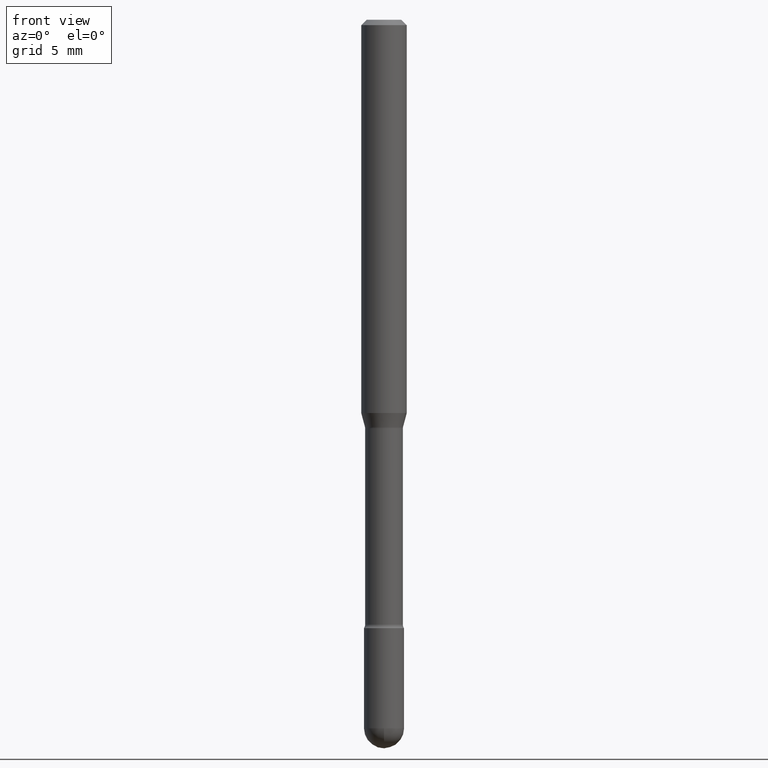
[diagram: clean part render]
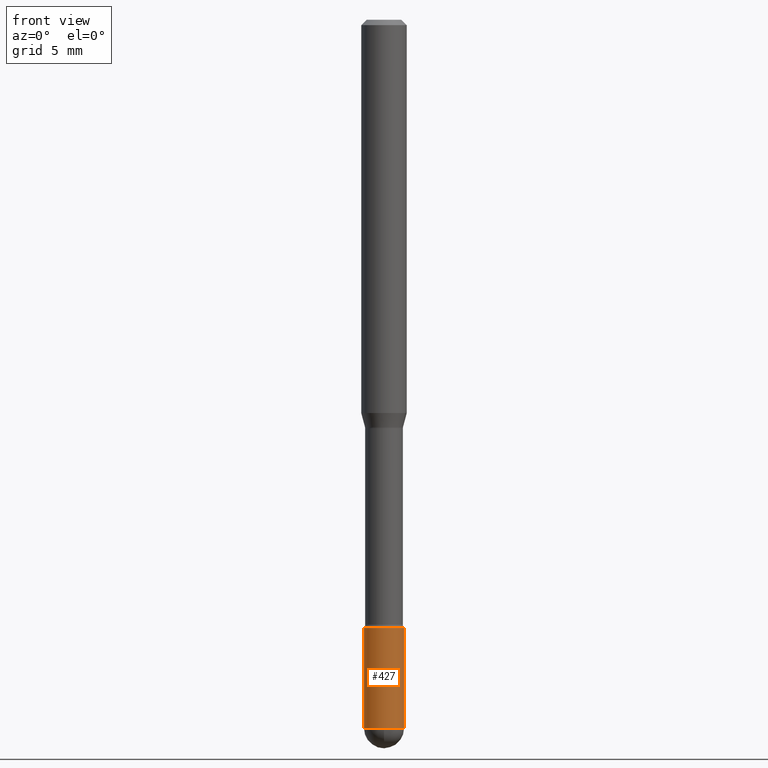
[diagram: same view with one face highlighted and labeled with its STEP entity id]
A machine part, front view. The second image highlights one B-rep face of the part: STEP entity #427.
In plain terms, the highlighted cylindrical surface (edge-blend (fillet) strip) has radius 1.397 mm, axis along (-0, 0, 1).
Its self-contained STEP definition (entity closure, byte-faithful):
#26 = CARTESIAN_POINT ( 'NONE',  ( -3.907985046680076246E-16, -0.05500000000000680733, -1.944999999999999618 ) ) ;
#38 = VERTEX_POINT ( 'NONE', #71 ) ;
#39 = CARTESIAN_POINT ( 'NONE',  ( 4.756436828030090255E-29, -6.790931204049917095E-15, -1.944999999999999840 ) ) ;
#42 = EDGE_CURVE ( 'NONE', #483, #402, #352, .T. ) ;
#44 = DIRECTION ( 'NONE',  ( -2.445468806185136597E-29, 3.491481338843145583E-15, 1.000000000000000000 ) ) ;
#65 = AXIS2_PLACEMENT_3D ( 'NONE', #85, #44, #218 ) ;
#67 = EDGE_CURVE ( 'NONE', #38, #483, #268, .T. ) ;
#71 = CARTESIAN_POINT ( 'NONE',  ( -0.05500000000000000028, -5.920054015290930810E-15, -1.944999999999999840 ) ) ;
#85 = CARTESIAN_POINT ( 'NONE',  ( 0.000000000000000000, 0.000000000000000000, 0.000000000000000000 ) ) ;
#88 = FACE_OUTER_BOUND ( 'NONE', #430, .T. ) ;
#90 = DIRECTION ( 'NONE',  ( -2.445468806185136597E-29, 3.491481338843145583E-15, 1.000000000000000000 ) ) ;
#127 = CARTESIAN_POINT ( 'NONE',  ( -0.05500000000000000028, 3.907985046680551042E-16, -2.705414299640198362E-30 ) ) ;
#136 = ORIENTED_EDGE ( 'NONE', *, *, #67, .F. ) ;
#164 = DIRECTION ( 'NONE',  ( 1.000000000000000000, -6.982962677686262766E-15, 0.000000000000000000 ) ) ;
#173 = DIRECTION ( 'NONE',  ( -2.445468806185136877E-29, 3.491481338843145188E-15, 1.000000000000000000 ) ) ;
#203 = CARTESIAN_POINT ( 'NONE',  ( 4.756436828030090255E-29, -6.790931204049917095E-15, -1.944999999999999840 ) ) ;
#205 = VECTOR ( 'NONE', #173, 39.37007874015748143 ) ;
#209 = CARTESIAN_POINT ( 'NONE',  ( 4.083932906329177803E-29, -5.830773835868053056E-15, -1.669999999999999929 ) ) ;
#218 = DIRECTION ( 'NONE',  ( 1.000000000000000000, -6.982962677686266711E-15, 4.876176775795935793E-29 ) ) ;
#258 = ORIENTED_EDGE ( 'NONE', *, *, #517, .T. ) ;
#259 = CARTESIAN_POINT ( 'NONE',  ( 0.05500000000000000028, -6.214836783140797252E-15, -1.669999999999999929 ) ) ;
#261 = EDGE_CURVE ( 'NONE', #38, #299, #397, .T. ) ;
#267 = DIRECTION ( 'NONE',  ( -2.445468806185136877E-29, 3.491481338843145188E-15, 1.000000000000000000 ) ) ;
#268 = LINE ( 'NONE', #127, #205 ) ;
#287 = ORIENTED_EDGE ( 'NONE', *, *, #261, .T. ) ;
#290 = AXIS2_PLACEMENT_3D ( 'NONE', #209, #555, #164 ) ;
#299 = VERTEX_POINT ( 'NONE', #26 ) ;
#334 = AXIS2_PLACEMENT_3D ( 'NONE', #203, #337, #557 ) ;
#337 = DIRECTION ( 'NONE',  ( -2.445468806185136597E-29, 3.491481338843145583E-15, 1.000000000000000000 ) ) ;
#344 = AXIS2_PLACEMENT_3D ( 'NONE', #39, #90, #471 ) ;
#352 = CIRCLE ( 'NONE', #290, 0.05500000000000000028 ) ;
#355 = EDGE_CURVE ( 'NONE', #299, #407, #480, .T. ) ;
#359 = CARTESIAN_POINT ( 'NONE',  ( -0.05500000000000000028, -5.920054015290930021E-15, -1.669999999999999929 ) ) ;
#376 = ORIENTED_EDGE ( 'NONE', *, *, #355, .T. ) ;
#393 = CARTESIAN_POINT ( 'NONE',  ( 0.05500000000000000028, -6.694915467231730455E-15, -1.944999999999999840 ) ) ;
#397 = CIRCLE ( 'NONE', #334, 0.05500000000000000028 ) ;
#402 = VERTEX_POINT ( 'NONE', #259 ) ;
#407 = VERTEX_POINT ( 'NONE', #393 ) ;
#427 = ADVANCED_FACE ( 'NONE', ( #88 ), #516, .T. ) ;
#430 = EDGE_LOOP ( 'NONE', ( #136, #287, #376, #258, #508 ) ) ;
#458 = VECTOR ( 'NONE', #267, 39.37007874015748143 ) ;
#471 = DIRECTION ( 'NONE',  ( 1.000000000000000000, -6.982962677686262766E-15, 0.000000000000000000 ) ) ;
#480 = CIRCLE ( 'NONE', #344, 0.05500000000000000028 ) ;
#483 = VERTEX_POINT ( 'NONE', #359 ) ;
#487 = CARTESIAN_POINT ( 'NONE',  ( 0.05500000000000000028, -3.840629472727446888E-16, 2.681897226687764826E-30 ) ) ;
#508 = ORIENTED_EDGE ( 'NONE', *, *, #42, .F. ) ;
#516 = CYLINDRICAL_SURFACE ( 'NONE', #65, 0.05500000000000000028 ) ;
#517 = EDGE_CURVE ( 'NONE', #407, #402, #532, .T. ) ;
#532 = LINE ( 'NONE', #487, #458 ) ;
#555 = DIRECTION ( 'NONE',  ( -2.445468806185136597E-29, 3.491481338843145583E-15, 1.000000000000000000 ) ) ;
#557 = DIRECTION ( 'NONE',  ( 1.000000000000000000, -6.982962677686262766E-15, 0.000000000000000000 ) ) ;